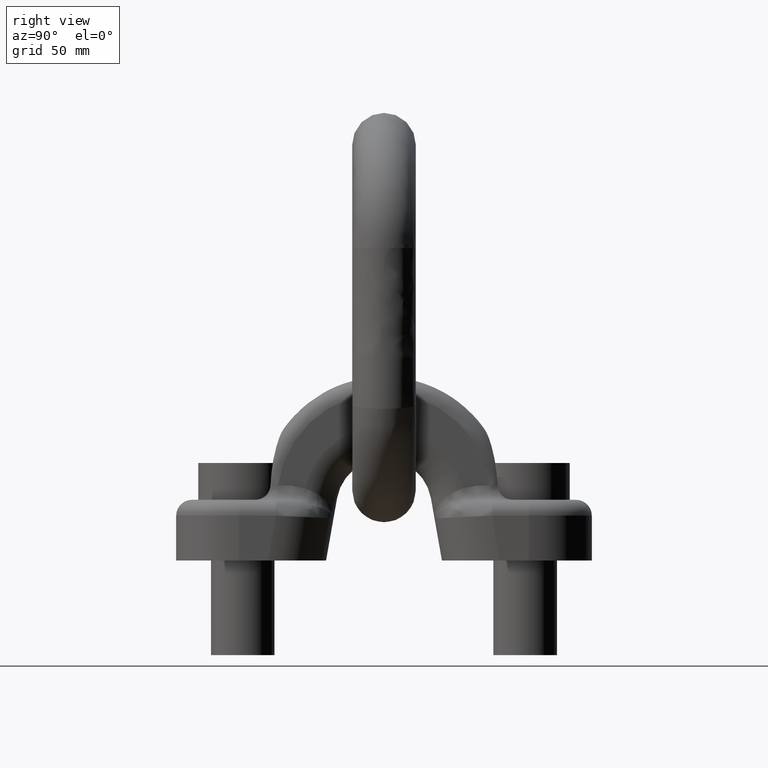
[diagram: clean part render]
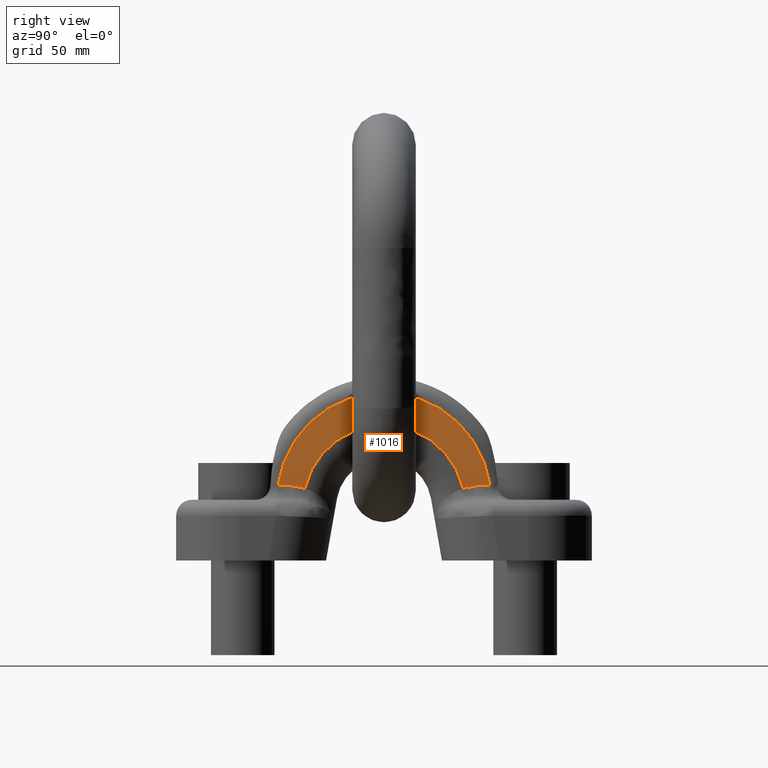
[diagram: same view with one face highlighted and labeled with its STEP entity id]
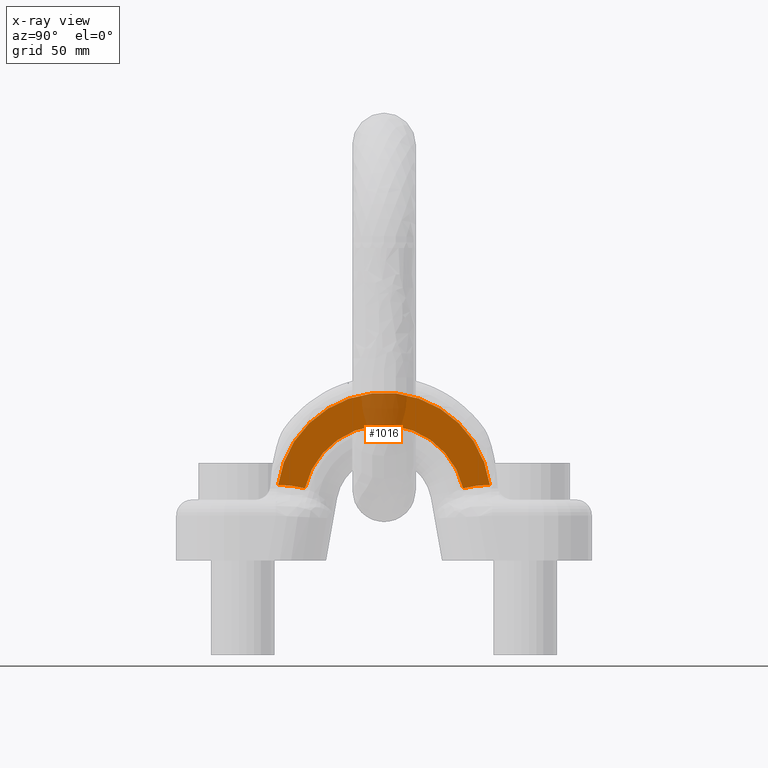
[diagram: x-ray of the same camera — body ghosted, the highlighted face saturated]
A machine part, right view. The second image highlights one B-rep face of the part: STEP entity #1016.
The next image is the same camera in x-ray: the body ghosted, the highlighted face saturated — about 17% of this face is hidden behind the body in this view.
In plain terms, the highlighted planar face has unit normal (1, 0, 0).
Its self-contained STEP definition (entity closure, byte-faithful):
#753=PLANE('',#3696);
#860=FACE_OUTER_BOUND('',#1555,.T.);
#1016=ADVANCED_FACE('',(#860),#753,.T.);
#1555=EDGE_LOOP('',(#2267,#2268,#2269,#2270));
#1791=B_SPLINE_CURVE_WITH_KNOTS('',3,(#5324,#5325,#5326,#5327,#5328,#5329),
 .UNSPECIFIED.,.F.,.F.,(4,2,4),(0.,0.5,1.),.UNSPECIFIED.);
#1792=B_SPLINE_CURVE_WITH_KNOTS('',3,(#5333,#5334,#5335,#5336,#5337,#5338),
 .UNSPECIFIED.,.F.,.F.,(4,2,4),(0.,0.5,1.),.UNSPECIFIED.);
#1984=CIRCLE('',#3640,75.75);
#2010=CIRCLE('',#3695,57.5018657755558);
#2267=ORIENTED_EDGE('',*,*,#3245,.T.);
#2268=ORIENTED_EDGE('',*,*,#3335,.T.);
#2269=ORIENTED_EDGE('',*,*,#3336,.T.);
#2270=ORIENTED_EDGE('',*,*,#3337,.T.);
#2971=VERTEX_POINT('',#4985);
#2972=VERTEX_POINT('',#4987);
#3033=VERTEX_POINT('',#5330);
#3034=VERTEX_POINT('',#5332);
#3245=EDGE_CURVE('',#2972,#2971,#1984,.T.);
#3335=EDGE_CURVE('',#2971,#3033,#1791,.T.);
#3336=EDGE_CURVE('',#3033,#3034,#2010,.T.);
#3337=EDGE_CURVE('',#3034,#2972,#1792,.T.);
#3640=AXIS2_PLACEMENT_3D('',#4986,#3888,#3889);
#3695=AXIS2_PLACEMENT_3D('',#5331,#4030,#4031);
#3696=AXIS2_PLACEMENT_3D('',#5339,#4032,#4033);
#3888=DIRECTION('',(1.,0.,0.));
#3889=DIRECTION('',(0.,0.,-1.));
#4030=DIRECTION('',(-1.,0.,0.));
#4031=DIRECTION('',(0.,0.,-1.));
#4032=DIRECTION('',(1.,0.,0.));
#4033=DIRECTION('',(0.,0.,-1.));
#4985=CARTESIAN_POINT('',(28.5,-75.0290019383752,53.4264743864495));
#4986=CARTESIAN_POINT('',(28.5,0.,43.));
#4987=CARTESIAN_POINT('',(28.5,75.0290019383752,53.4264743864495));
#5324=CARTESIAN_POINT('',(28.5,-75.0290019383752,53.4264743864495));
#5325=CARTESIAN_POINT('',(28.5,-71.8225238069292,53.3891844151295));
#5326=CARTESIAN_POINT('',(28.5,-68.6292463418147,53.2423193219003));
#5327=CARTESIAN_POINT('',(28.5,-62.2884536414522,52.568729377567));
#5328=CARTESIAN_POINT('',(28.5,-59.1409469752972,52.0419333967658));
#5329=CARTESIAN_POINT('',(28.5,-56.0387905599331,51.1386973837538));
#5330=CARTESIAN_POINT('',(28.5,-56.0387905599331,51.1386973837538));
#5331=CARTESIAN_POINT('',(28.5,0.,38.25));
#5332=CARTESIAN_POINT('',(28.5,56.0387905599332,51.1386973837538));
#5333=CARTESIAN_POINT('',(28.5,56.0387905599331,51.1386973837538));
#5334=CARTESIAN_POINT('',(28.5,59.1409469752972,52.0419333967657));
#5335=CARTESIAN_POINT('',(28.5,62.2884536414523,52.5687293775671));
#5336=CARTESIAN_POINT('',(28.5,68.6292463418147,53.2423193219003));
#5337=CARTESIAN_POINT('',(28.5,71.8225238069292,53.3891844151295));
#5338=CARTESIAN_POINT('',(28.5,75.0290019383752,53.4264743864495));
#5339=CARTESIAN_POINT('',(28.5,87.,345.28775727109));